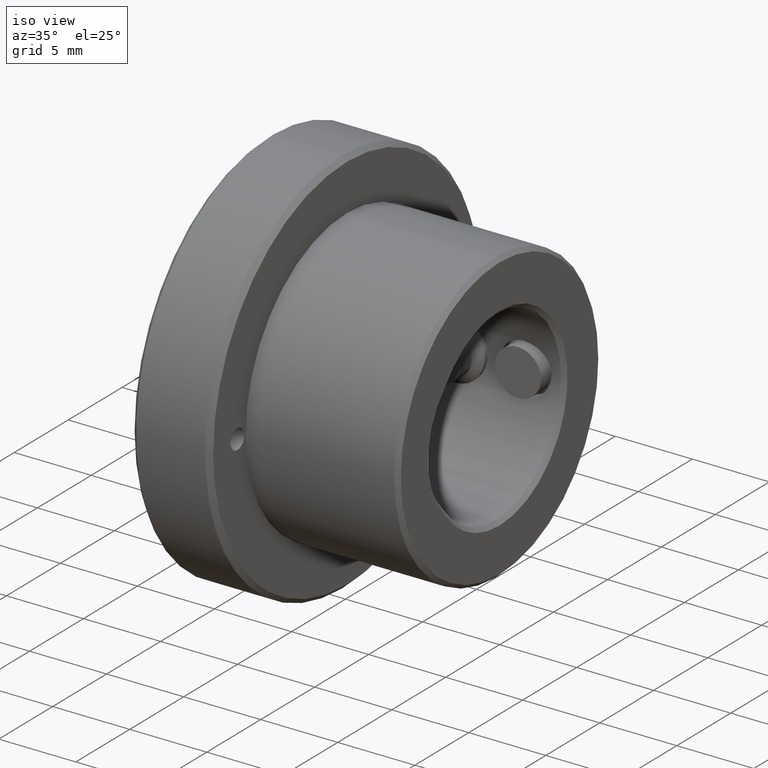
[diagram: clean part render]
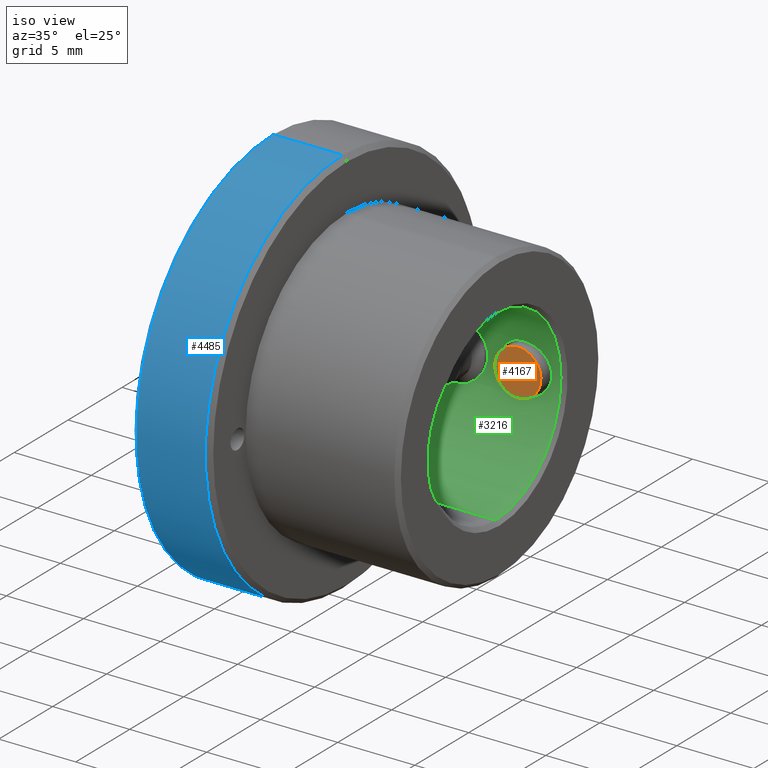
[diagram: same view with three faces highlighted in distinct colors, each labeled with its STEP entity id]
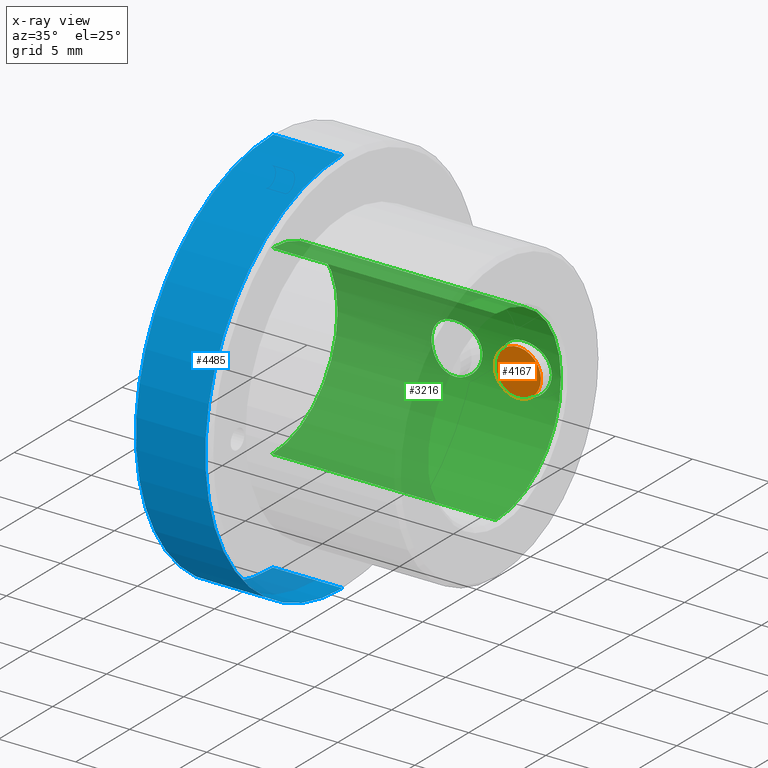
[diagram: x-ray of the same camera — body ghosted, the three highlighted faces saturated]
A machine part, iso view with three faces highlighted in distinct colors.
The next image is the same camera in x-ray (body ghosted, the three faces saturated) — at least one of them is partly hidden behind the body in this view.
Their STEP definitions:

[orange] entity #4167 — the highlighted planar face has unit normal (0, -1, -0).
#119 = DIRECTION ( 'NONE',  ( -0.07269587211734930554, 0.000000000000000000, -0.9973541548402442558 ) ) ;
#181 = ORIENTED_EDGE ( 'NONE', *, *, #3874, .T. ) ;
#583 = CARTESIAN_POINT ( 'NONE',  ( 12.39095619182397279, 5.267381158747628689, -1.496031232260366606 ) ) ;
#597 = CARTESIAN_POINT ( 'NONE',  ( 12.49999999999999645, 5.267381158747628689, -9.870023671163749522E-17 ) ) ;
#617 = CARTESIAN_POINT ( 'NONE',  ( 12.49999999999999645, 5.267381158747628689, -9.870023671163749522E-17 ) ) ;
#1184 = EDGE_CURVE ( 'NONE', #4309, #3618, #3786, .T. ) ;
#1241 = CARTESIAN_POINT ( 'NONE',  ( 12.49999999999999645, 5.267381158747628689, -9.870023671163749522E-17 ) ) ;
#1283 = AXIS2_PLACEMENT_3D ( 'NONE', #617, #4974, #3727 ) ;
#1576 = DIRECTION ( 'NONE',  ( 5.083153145339566557E-16, -1.000000000000000000, -1.738507377522465342E-17 ) ) ;
#1590 = ORIENTED_EDGE ( 'NONE', *, *, #1184, .T. ) ;
#1613 = CARTESIAN_POINT ( 'NONE',  ( 12.60904380817602188, 5.267381158747628689, 1.496031232260366606 ) ) ;
#1752 = DIRECTION ( 'NONE',  ( 5.083153145339567543E-16, -1.000000000000000000, -1.738507377522467191E-17 ) ) ;
#2302 = FACE_OUTER_BOUND ( 'NONE', #2749, .T. ) ;
#2489 = AXIS2_PLACEMENT_3D ( 'NONE', #597, #1752, #119 ) ;
#2578 = CIRCLE ( 'NONE', #1283, 1.500000000000000666 ) ;
#2749 = EDGE_LOOP ( 'NONE', ( #181, #1590 ) ) ;
#3371 = AXIS2_PLACEMENT_3D ( 'NONE', #1241, #1576, #3862 ) ;
#3618 = VERTEX_POINT ( 'NONE', #1613 ) ;
#3727 = DIRECTION ( 'NONE',  ( -0.07269587211734930554, 0.000000000000000000, -0.9973541548402442558 ) ) ;
#3786 = CIRCLE ( 'NONE', #2489, 1.500000000000000666 ) ;
#3862 = DIRECTION ( 'NONE',  ( -0.07269587211734895860, -1.961334953872604770E-17, -0.9973541548402442558 ) ) ;
#3874 = EDGE_CURVE ( 'NONE', #3618, #4309, #2578, .T. ) ;
#3889 = PLANE ( 'NONE',  #3371 ) ;
#4167 = ADVANCED_FACE ( 'NONE', ( #2302 ), #3889, .T. ) ;
#4309 = VERTEX_POINT ( 'NONE', #583 ) ;
#4974 = DIRECTION ( 'NONE',  ( 5.083153145339567543E-16, -1.000000000000000000, -1.738507377522467191E-17 ) ) ;

[blue] entity #4485 — the highlighted cylindrical surface (partial cylindrical patch) has radius 12.7 mm, axis along (-1, -0, -0).
#211 = CIRCLE ( 'NONE', #457, 12.69999999999999929 ) ;
#444 = AXIS2_PLACEMENT_3D ( 'NONE', #2320, #2873, #4040 ) ;
#457 = AXIS2_PLACEMENT_3D ( 'NONE', #2596, #1926, #3476 ) ;
#483 = AXIS2_PLACEMENT_3D ( 'NONE', #2969, #1027, #718 ) ;
#718 = DIRECTION ( 'NONE',  ( 0.000000000000000000, 0.000000000000000000, 1.000000000000000000 ) ) ;
#888 = CARTESIAN_POINT ( 'NONE',  ( 4.800000000000002487, 0.000000000000000000, 12.69999999999999929 ) ) ;
#923 = ORIENTED_EDGE ( 'NONE', *, *, #3354, .T. ) ;
#1027 = DIRECTION ( 'NONE',  ( -1.000000000000000000, -0.000000000000000000, -0.000000000000000000 ) ) ;
#1106 = DIRECTION ( 'NONE',  ( -1.000000000000000000, -0.000000000000000000, -0.000000000000000000 ) ) ;
#1189 = DIRECTION ( 'NONE',  ( -1.000000000000000000, -0.000000000000000000, -0.000000000000000000 ) ) ;
#1450 = VECTOR ( 'NONE', #1189, 1000.000000000000000 ) ;
#1593 = CIRCLE ( 'NONE', #444, 12.69999999999999929 ) ;
#1677 = CARTESIAN_POINT ( 'NONE',  ( 0.2999999999999964362, 0.000000000000000000, 12.69999999999999929 ) ) ;
#1710 = VERTEX_POINT ( 'NONE', #1677 ) ;
#1912 = VECTOR ( 'NONE', #1106, 1000.000000000000000 ) ;
#1926 = DIRECTION ( 'NONE',  ( -1.000000000000000000, 0.000000000000000000, 0.000000000000000000 ) ) ;
#1960 = CARTESIAN_POINT ( 'NONE',  ( 0.2999999999999964362, 1.555301434917138433E-15, -12.69999999999999929 ) ) ;
#1963 = VERTEX_POINT ( 'NONE', #2331 ) ;
#2160 = EDGE_CURVE ( 'NONE', #2402, #1710, #3774, .T. ) ;
#2320 = CARTESIAN_POINT ( 'NONE',  ( 0.2999999999999964362, 0.000000000000000000, 0.000000000000000000 ) ) ;
#2331 = CARTESIAN_POINT ( 'NONE',  ( 4.800000000000002487, 1.555301434917138433E-15, -12.69999999999999929 ) ) ;
#2402 = VERTEX_POINT ( 'NONE', #888 ) ;
#2471 = ORIENTED_EDGE ( 'NONE', *, *, #2509, .T. ) ;
#2509 = EDGE_CURVE ( 'NONE', #1710, #3544, #1593, .T. ) ;
#2596 = CARTESIAN_POINT ( 'NONE',  ( 4.800000000000002487, 0.000000000000000000, 0.000000000000000000 ) ) ;
#2873 = DIRECTION ( 'NONE',  ( 1.000000000000000000, -0.000000000000000000, -0.000000000000000000 ) ) ;
#2969 = CARTESIAN_POINT ( 'NONE',  ( 15.00000000000000000, 0.000000000000000000, 0.000000000000000000 ) ) ;
#3023 = CYLINDRICAL_SURFACE ( 'NONE', #483, 12.69999999999999929 ) ;
#3180 = ORIENTED_EDGE ( 'NONE', *, *, #4841, .F. ) ;
#3354 = EDGE_CURVE ( 'NONE', #1963, #2402, #211, .T. ) ;
#3476 = DIRECTION ( 'NONE',  ( 0.000000000000000000, 0.000000000000000000, -1.000000000000000000 ) ) ;
#3544 = VERTEX_POINT ( 'NONE', #1960 ) ;
#3774 = LINE ( 'NONE', #4518, #1912 ) ;
#3951 = LINE ( 'NONE', #4655, #1450 ) ;
#4026 = EDGE_LOOP ( 'NONE', ( #3180, #923, #4176, #2471 ) ) ;
#4040 = DIRECTION ( 'NONE',  ( 0.000000000000000000, 0.000000000000000000, -1.000000000000000000 ) ) ;
#4176 = ORIENTED_EDGE ( 'NONE', *, *, #2160, .T. ) ;
#4485 = ADVANCED_FACE ( 'NONE', ( #4573 ), #3023, .T. ) ;
#4518 = CARTESIAN_POINT ( 'NONE',  ( 15.00000000000000000, 0.000000000000000000, 12.69999999999999929 ) ) ;
#4573 = FACE_OUTER_BOUND ( 'NONE', #4026, .T. ) ;
#4655 = CARTESIAN_POINT ( 'NONE',  ( 15.00000000000000000, 1.555301434917138433E-15, -12.69999999999999929 ) ) ;
#4841 = EDGE_CURVE ( 'NONE', #1963, #3544, #3951, .T. ) ;

[green] entity #3216 — the highlighted cylindrical surface (partial cylindrical patch) has radius 6.05 mm, axis along (-1, -0, -0).
#21 = CARTESIAN_POINT ( 'NONE',  ( 8.000000000000000000, 5.820652884342100819, 1.649999999999992584 ) ) ;
#45 = CARTESIAN_POINT ( 'NONE',  ( 6.909863855020534018, 5.921387189460617151, -1.243254704019277179 ) ) ;
#66 = CARTESIAN_POINT ( 'NONE',  ( 8.108001473620124244, 5.820652884342101707, -1.649999999999993028 ) ) ;
#115 = CARTESIAN_POINT ( 'NONE',  ( 13.94113598176530999, 5.995874287341723452, 0.8317341448035647788 ) ) ;
#164 = CARTESIAN_POINT ( 'NONE',  ( 14.75000000000000000, 7.409113134841486521E-16, -6.049999999999999822 ) ) ;
#196 = B_SPLINE_CURVE_WITH_KNOTS ( 'NONE', 3,
 ( #3398, #4990, #1492, #1467, #1080, #2267, #2657, #716, #3608, #1592, #115, #4401, #937, #2078, #3907, #4293, #3493, #4795, #3254, #2825, #413, #4652, #2103, #1323, #5041, #1298, #2848, #3234 ),
 .UNSPECIFIED., .F., .F.,
 ( 4, 2, 2, 2, 2, 2, 2, 2, 2, 2, 2, 2, 2, 4 ),
 ( 0.000000000000000000, 0.0003239533771381983090, 0.0006479067542763966179, 0.0009718601314145948727, 0.001295813508552793236, 0.001943720262829189745, 0.002591627017105586472, 0.002915580394243784835, 0.003239533771381982764, 0.003887440525658379491, 0.004211393902796578721, 0.004535347279934778819, 0.004859300657072977182, 0.005183254034211177280 ),
 .UNSPECIFIED. ) ;
#222 = EDGE_LOOP ( 'NONE', ( #2545, #1523 ) ) ;
#271 = CARTESIAN_POINT ( 'NONE',  ( 12.07012878539819667, 5.835541179983138704, 1.596698283100225879 ) ) ;
#381 = CARTESIAN_POINT ( 'NONE',  ( 9.639178384873765992, 6.047023121153222824, -0.2174533895353867041 ) ) ;
#406 = CARTESIAN_POINT ( 'NONE',  ( 8.428818910613633975, 5.835471435782779714, 1.596951337616860922 ) ) ;
#413 = CARTESIAN_POINT ( 'NONE',  ( 13.50716811691524377, 5.906490585142162075, -1.311345055303445806 ) ) ;
#427 = CARTESIAN_POINT ( 'NONE',  ( 6.434896040027602737, 6.027267498296711601, 0.5334300614515882222 ) ) ;
#432 = EDGE_LOOP ( 'NONE', ( #4515, #2098, #2154, #2367 ) ) ;
#449 = CARTESIAN_POINT ( 'NONE',  ( 6.434740351836484962, 6.027304640978334405, -0.5332127588514852246 ) ) ;
#475 = CARTESIAN_POINT ( 'NONE',  ( 7.570128785398200222, 5.835541179983138704, 1.596698283100225657 ) ) ;
#536 = VECTOR ( 'NONE', #5036, 1000.000000000000000 ) ;
#625 = CARTESIAN_POINT ( 'NONE',  ( 11.40986385502053224, 5.921387189460618039, -1.243254704019276957 ) ) ;
#652 = CARTESIAN_POINT ( 'NONE',  ( 10.90329140060959467, 6.035649314777584706, -0.4296898438400200138 ) ) ;
#678 = CARTESIAN_POINT ( 'NONE',  ( 8.217223572501771045, 5.823746843758519809, 1.639192835625423061 ) ) ;
#705 = CARTESIAN_POINT ( 'NONE',  ( 11.67134456165053891, 5.878679629362986603, -1.430874558913089123 ) ) ;
#711 = CARTESIAN_POINT ( 'NONE',  ( 15.00000000000000000, 7.409113134841486521E-16, -6.049999999999999822 ) ) ;
#716 = CARTESIAN_POINT ( 'NONE',  ( 13.50698412154059369, 5.906454435006299519, 1.311515988438456626 ) ) ;
#732 = CARTESIAN_POINT ( 'NONE',  ( 12.28257336775668129, 5.823746727197572248, 1.639195024391473465 ) ) ;
#744 = DIRECTION ( 'NONE',  ( -1.000000000000000000, -0.000000000000000000, -0.000000000000000000 ) ) ;
#760 = CARTESIAN_POINT ( 'NONE',  ( 9.596781110140884863, 6.035668377572366516, -0.4295134926344363335 ) ) ;
#786 = CARTESIAN_POINT ( 'NONE',  ( 6.350021537615861078, 6.049994126104873970, -0.1091092075147136187 ) ) ;
#792 = LINE ( 'NONE', #711, #536 ) ;
#815 = CARTESIAN_POINT ( 'NONE',  ( 7.464884637372581899, 5.844364417352345242, 1.564523180999336960 ) ) ;
#833 = EDGE_LOOP ( 'NONE', ( #1268, #1889 ) ) ;
#836 = CARTESIAN_POINT ( 'NONE',  ( 8.733454485855785876, 5.865843182979457282, 1.481965860581485606 ) ) ;
#861 = CARTESIAN_POINT ( 'NONE',  ( 9.318374598874992643, 5.966244817127337008, 1.015011607054941756 ) ) ;
#869 = VERTEX_POINT ( 'NONE', #3361 ) ;
#937 = CARTESIAN_POINT ( 'NONE',  ( 14.14990892080386153, 6.049975160221265469, 0.2171116380738270790 ) ) ;
#956 = VERTEX_POINT ( 'NONE', #2954 ) ;
#1019 = FACE_BOUND ( 'NONE', #833, .T. ) ;
#1069 = CARTESIAN_POINT ( 'NONE',  ( 11.01837379335457179, 6.006128510547249277, -0.7342597606790576270 ) ) ;
#1080 = CARTESIAN_POINT ( 'NONE',  ( 13.03389647622116954, 5.844245563954850731, 1.564970558007278356 ) ) ;
#1098 = CYLINDRICAL_SURFACE ( 'NONE', #3509, 6.049999999999999822 ) ;
#1107 = LINE ( 'NONE', #4266, #3430 ) ;
#1124 = CARTESIAN_POINT ( 'NONE',  ( 12.49999999999999822, 5.820652884342100819, -1.649999999999992584 ) ) ;
#1150 = CARTESIAN_POINT ( 'NONE',  ( 8.732202642485704658, 5.865691249060273726, -1.482561562781913533 ) ) ;
#1177 = CARTESIAN_POINT ( 'NONE',  ( 7.784056454903546474, 5.820652884342099931, -1.649999999999992362 ) ) ;
#1193 = VERTEX_POINT ( 'NONE', #4874 ) ;
#1204 = CARTESIAN_POINT ( 'NONE',  ( 6.681554222995073289, 5.966263612773838432, 1.014889503281987571 ) ) ;
#1248 = CARTESIAN_POINT ( 'NONE',  ( 6.360968044777620456, 6.046983549659113777, -0.2183711588704845830 ) ) ;
#1268 = ORIENTED_EDGE ( 'NONE', *, *, #2359, .T. ) ;
#1270 = EDGE_CURVE ( 'NONE', #4151, #956, #4581, .T. ) ;
#1298 = CARTESIAN_POINT ( 'NONE',  ( 12.71754542227796136, 5.823748415557236768, -1.639189706305362648 ) ) ;
#1323 = CARTESIAN_POINT ( 'NONE',  ( 13.03317988904885816, 5.844184623514676602, -1.565192864478766488 ) ) ;
#1384 = EDGE_CURVE ( 'NONE', #2892, #1698, #2445, .T. ) ;
#1430 = EDGE_CURVE ( 'NONE', #1698, #2892, #2258, .T. ) ;
#1467 = CARTESIAN_POINT ( 'NONE',  ( 12.92881891061363397, 5.835471435782780603, 1.596951337616860922 ) ) ;
#1492 = CARTESIAN_POINT ( 'NONE',  ( 12.71722357250177282, 5.823746843758520697, 1.639192835625423283 ) ) ;
#1507 = CARTESIAN_POINT ( 'NONE',  ( 12.49999999999999822, 5.820652884342100819, 1.649999999999992584 ) ) ;
#1513 = CIRCLE ( 'NONE', #2809, 6.049999999999999822 ) ;
#1523 = ORIENTED_EDGE ( 'NONE', *, *, #1430, .T. ) ;
#1529 = DIRECTION ( 'NONE',  ( 0.000000000000000000, 0.000000000000000000, -1.000000000000000000 ) ) ;
#1538 = FACE_BOUND ( 'NONE', #222, .T. ) ;
#1561 = CARTESIAN_POINT ( 'NONE',  ( 8.000000000000000000, 5.820652884342100819, -1.649999999999992584 ) ) ;
#1584 = CARTESIAN_POINT ( 'NONE',  ( 9.091284006682245789, 5.921603853009377083, 1.242201373817180210 ) ) ;
#1592 = CARTESIAN_POINT ( 'NONE',  ( 13.81837459887499620, 5.966244817127337896, 1.015011607054941978 ) ) ;
#1609 = CARTESIAN_POINT ( 'NONE',  ( 7.890447948862960637, 5.820652884342102595, 1.649999999999992806 ) ) ;
#1631 = CARTESIAN_POINT ( 'NONE',  ( 8.000000000000000000, 5.820652884342100819, -1.649999999999992584 ) ) ;
#1656 = CARTESIAN_POINT ( 'NONE',  ( 9.565428852286959938, 6.027349805914687053, -0.5326459923273910713 ) ) ;
#1698 = VERTEX_POINT ( 'NONE', #3700 ) ;
#1804 = CARTESIAN_POINT ( 'NONE',  ( 11.49257571605417638, 5.906530964708893272, -1.311170527035711908 ) ) ;
#1830 = CARTESIAN_POINT ( 'NONE',  ( 10.93489604002760451, 6.027267498296711601, 0.5334300614515883332 ) ) ;
#1881 = CARTESIAN_POINT ( 'NONE',  ( 11.48409209935594610, 5.906781788148093959, 1.317661226637211636 ) ) ;
#1889 = ORIENTED_EDGE ( 'NONE', *, *, #1270, .T. ) ;
#1906 = CARTESIAN_POINT ( 'NONE',  ( 11.18155422299506796, 5.966263612773837544, 1.014889503281986904 ) ) ;
#1933 = CARTESIAN_POINT ( 'NONE',  ( 8.533179889048861710, 5.844184623514677490, -1.565192864478766932 ) ) ;
#1957 = CARTESIAN_POINT ( 'NONE',  ( 7.566019144702107013, 5.833463128635248296, -1.606387650986832671 ) ) ;
#1980 = CARTESIAN_POINT ( 'NONE',  ( 9.649908920803863310, 6.049975160221266357, 0.2171116380738271068 ) ) ;
#1997 = EDGE_CURVE ( 'NONE', #869, #2318, #1513, .T. ) ;
#2002 = CARTESIAN_POINT ( 'NONE',  ( 6.403291400609598227, 6.035649314777582930, -0.4296898438400201248 ) ) ;
#2078 = CARTESIAN_POINT ( 'NONE',  ( 14.15004532112130420, 6.050012360304802606, -0.1075158864051247443 ) ) ;
#2098 = ORIENTED_EDGE ( 'NONE', *, *, #4744, .T. ) ;
#2103 = CARTESIAN_POINT ( 'NONE',  ( 13.23220264248570111, 5.865691249060271950, -1.482561562781913311 ) ) ;
#2154 = ORIENTED_EDGE ( 'NONE', *, *, #2858, .T. ) ;
#2179 = CARTESIAN_POINT ( 'NONE',  ( 11.05882012251884561, 5.995882904232449739, 0.8318008804212525531 ) ) ;
#2228 = CARTESIAN_POINT ( 'NONE',  ( 10.86061089756231368, 6.047080519543242438, 0.2158910984902901453 ) ) ;
#2256 = CARTESIAN_POINT ( 'NONE',  ( 11.18846256502483882, 5.966302519368756663, -1.006899070453918688 ) ) ;
#2258 = B_SPLINE_CURVE_WITH_KNOTS ( 'NONE', 3,
 ( #1631, #1177, #1957, #2310, #3183, #3872, #45, #5059, #3115, #2411, #2730, #449, #2002, #1248, #786, #3966, #4284, #2801, #427, #2337, #1204, #4312, #3898, #815, #475, #3530, #1609, #21 ),
 .UNSPECIFIED., .F., .F.,
 ( 4, 2, 2, 2, 2, 2, 2, 2, 2, 2, 2, 2, 2, 4 ),
 ( 0.005183254034211177280, 0.005830982610130875689, 0.006154846898090725327, 0.006478711186050574097, 0.006802575474010423735, 0.007126439761970272506, 0.007450304049930122144, 0.007774168337889970914, 0.008098032625849819685, 0.008421896913809668456, 0.009069625489729365997, 0.009717354065649063538, 0.01004121835360891057, 0.01036508264156875761 ),
 .UNSPECIFIED. ) ;
#2267 = CARTESIAN_POINT ( 'NONE',  ( 13.23345448585578232, 5.865843182979456394, 1.481965860581485162 ) ) ;
#2310 = CARTESIAN_POINT ( 'NONE',  ( 7.267867043559038009, 5.865684686249547752, -1.482586085559628231 ) ) ;
#2318 = VERTEX_POINT ( 'NONE', #2966 ) ;
#2337 = CARTESIAN_POINT ( 'NONE',  ( 6.558820122518847384, 5.995882904232452404, 0.8318008804212526641 ) ) ;
#2347 = CARTESIAN_POINT ( 'NONE',  ( 14.75000000000000000, 0.000000000000000000, 0.000000000000000000 ) ) ;
#2354 = CARTESIAN_POINT ( 'NONE',  ( 0.2500000000000036637, 0.000000000000000000, 0.000000000000000000 ) ) ;
#2359 = EDGE_CURVE ( 'NONE', #956, #4151, #196, .T. ) ;
#2361 = CARTESIAN_POINT ( 'NONE',  ( 9.318953645693060395, 5.966341157360104397, -1.014617364795000309 ) ) ;
#2367 = ORIENTED_EDGE ( 'NONE', *, *, #1997, .T. ) ;
#2386 = CARTESIAN_POINT ( 'NONE',  ( 9.440542365182119866, 5.995721397049218915, -0.8333394704291797739 ) ) ;
#2411 = CARTESIAN_POINT ( 'NONE',  ( 6.569275362430828658, 5.993630644094795734, -0.8288565574782845724 ) ) ;
#2445 = B_SPLINE_CURVE_WITH_KNOTS ( 'NONE', 3,
 ( #4559, #4174, #678, #406, #4670, #836, #4355, #3919, #1584, #861, #3207, #4255, #1980, #4332, #381, #760, #1656, #2386, #2361, #4694, #3939, #2755, #1150, #1933, #3554, #2780, #66, #1561 ),
 .UNSPECIFIED., .F., .F.,
 ( 4, 2, 2, 2, 2, 2, 2, 2, 2, 2, 2, 2, 2, 4 ),
 ( 0.000000000000000000, 0.0003239533771381977127, 0.0006479067542763954253, 0.0009718601314145931380, 0.001295813508552790851, 0.001943720262829189962, 0.002591627017105589074, 0.002915580394243788304, 0.003239533771381987969, 0.003887440525658386863, 0.004211393902796584793, 0.004535347279934782289, 0.004859300657072979784, 0.005183254034211177280 ),
 .UNSPECIFIED. ) ;
#2496 = CARTESIAN_POINT ( 'NONE',  ( 8.000000000000000000, 5.820652884342100819, 1.649999999999992584 ) ) ;
#2545 = ORIENTED_EDGE ( 'NONE', *, *, #1384, .T. ) ;
#2573 = CARTESIAN_POINT ( 'NONE',  ( 15.00000000000000000, 0.000000000000000000, 0.000000000000000000 ) ) ;
#2657 = CARTESIAN_POINT ( 'NONE',  ( 13.32801868572408210, 5.878588428838928515, 1.431249896089546114 ) ) ;
#2730 = CARTESIAN_POINT ( 'NONE',  ( 6.518373793354574453, 6.006128510547250166, -0.7342597606790575160 ) ) ;
#2755 = CARTESIAN_POINT ( 'NONE',  ( 8.828847929001808481, 5.878710088620886509, -1.430742667424442116 ) ) ;
#2780 = CARTESIAN_POINT ( 'NONE',  ( 8.217545422277964917, 5.823748415557239433, -1.639189706305363536 ) ) ;
#2801 = CARTESIAN_POINT ( 'NONE',  ( 6.402839146083412203, 6.035769128614138168, 0.4281154077059343699 ) ) ;
#2809 = AXIS2_PLACEMENT_3D ( 'NONE', #2354, #3455, #1529 ) ;
#2825 = CARTESIAN_POINT ( 'NONE',  ( 13.58993114654087186, 5.921346715556370377, -1.243461649954653803 ) ) ;
#2848 = CARTESIAN_POINT ( 'NONE',  ( 12.60800147362012247, 5.820652884342099931, -1.649999999999992362 ) ) ;
#2858 = EDGE_CURVE ( 'NONE', #1193, #869, #1107, .T. ) ;
#2892 = VERTEX_POINT ( 'NONE', #2496 ) ;
#2954 = CARTESIAN_POINT ( 'NONE',  ( 12.49999999999999822, 5.820652884342100819, 1.649999999999992584 ) ) ;
#2966 = CARTESIAN_POINT ( 'NONE',  ( 0.2500000000000036637, 7.409113134841486521E-16, -6.049999999999999822 ) ) ;
#3015 = FACE_OUTER_BOUND ( 'NONE', #432, .T. ) ;
#3091 = CARTESIAN_POINT ( 'NONE',  ( 12.06601914470210168, 5.833463128635245631, -1.606387650986832227 ) ) ;
#3115 = CARTESIAN_POINT ( 'NONE',  ( 6.688462565024839712, 5.966302519368756663, -1.006899070453918688 ) ) ;
#3124 = DIRECTION ( 'NONE',  ( 0.000000000000000000, 0.000000000000000000, -1.000000000000000000 ) ) ;
#3183 = CARTESIAN_POINT ( 'NONE',  ( 7.171344561650538019, 5.878679629362985715, -1.430874558913088901 ) ) ;
#3207 = CARTESIAN_POINT ( 'NONE',  ( 9.441135981765313545, 5.995874287341723452, 0.8317341448035647788 ) ) ;
#3216 = ADVANCED_FACE ( 'NONE', ( #3015, #1538, #1019 ), #1098, .F. ) ;
#3224 = VERTEX_POINT ( 'NONE', #164 ) ;
#3234 = CARTESIAN_POINT ( 'NONE',  ( 12.49999999999999822, 5.820652884342100819, -1.649999999999992584 ) ) ;
#3254 = CARTESIAN_POINT ( 'NONE',  ( 13.81895364569306395, 5.966341157360105285, -1.014617364794999865 ) ) ;
#3361 = CARTESIAN_POINT ( 'NONE',  ( 0.2500000000000036637, 0.000000000000000000, 6.049999999999999822 ) ) ;
#3389 = DIRECTION ( 'NONE',  ( 0.000000000000000000, 0.000000000000000000, 1.000000000000000000 ) ) ;
#3398 = CARTESIAN_POINT ( 'NONE',  ( 12.49999999999999822, 5.820652884342100819, 1.649999999999992584 ) ) ;
#3399 = CIRCLE ( 'NONE', #4039, 6.049999999999999822 ) ;
#3411 = CARTESIAN_POINT ( 'NONE',  ( 11.76786704355903623, 5.865684686249547752, -1.482586085559628009 ) ) ;
#3430 = VECTOR ( 'NONE', #744, 1000.000000000000000 ) ;
#3434 = CARTESIAN_POINT ( 'NONE',  ( 11.66685783109869767, 5.876658390580394631, 1.440381570006760148 ) ) ;
#3455 = DIRECTION ( 'NONE',  ( -1.000000000000000000, 0.000000000000000000, 0.000000000000000000 ) ) ;
#3459 = CARTESIAN_POINT ( 'NONE',  ( 10.85002153761585930, 6.049994126104873082, -0.1091092075147135770 ) ) ;
#3493 = CARTESIAN_POINT ( 'NONE',  ( 14.06542885228695994, 6.027349805914687053, -0.5326459923273911823 ) ) ;
#3509 = AXIS2_PLACEMENT_3D ( 'NONE', #2573, #4127, #3389 ) ;
#3530 = CARTESIAN_POINT ( 'NONE',  ( 7.782573367756678628, 5.823746727197573136, 1.639195024391473465 ) ) ;
#3554 = CARTESIAN_POINT ( 'NONE',  ( 8.430292572767440262, 5.835569491928800367, -1.596595504764039886 ) ) ;
#3579 = EDGE_CURVE ( 'NONE', #3224, #2318, #792, .T. ) ;
#3608 = CARTESIAN_POINT ( 'NONE',  ( 13.59128400668224579, 5.921603853009376195, 1.242201373817179988 ) ) ;
#3700 = CARTESIAN_POINT ( 'NONE',  ( 8.000000000000000000, 5.820652884342100819, -1.649999999999992584 ) ) ;
#3733 = CARTESIAN_POINT ( 'NONE',  ( 12.39044794886295975, 5.820652884342102595, 1.649999999999992806 ) ) ;
#3761 = CARTESIAN_POINT ( 'NONE',  ( 10.86096804477762667, 6.046983549659116441, -0.2183711588704846107 ) ) ;
#3817 = CARTESIAN_POINT ( 'NONE',  ( 10.93474035183648851, 6.027304640978333516, -0.5332127588514853356 ) ) ;
#3872 = CARTESIAN_POINT ( 'NONE',  ( 6.992575716054175494, 5.906530964708890608, -1.311170527035711464 ) ) ;
#3898 = CARTESIAN_POINT ( 'NONE',  ( 7.166857831098698561, 5.876658390580393743, 1.440381570006760814 ) ) ;
#3907 = CARTESIAN_POINT ( 'NONE',  ( 14.13917838487376599, 6.047023121153222824, -0.2174533895353865931 ) ) ;
#3913 = CARTESIAN_POINT ( 'NONE',  ( 12.49999999999999822, 5.820652884342100819, -1.649999999999992584 ) ) ;
#3919 = CARTESIAN_POINT ( 'NONE',  ( 9.006984121540588362, 5.906454435006298631, 1.311515988438456182 ) ) ;
#3939 = CARTESIAN_POINT ( 'NONE',  ( 9.007168116915245548, 5.906490585142162075, -1.311345055303446028 ) ) ;
#3966 = CARTESIAN_POINT ( 'NONE',  ( 6.349978526868706119, 6.050005856308430907, 0.1084568287460480618 ) ) ;
#4039 = AXIS2_PLACEMENT_3D ( 'NONE', #2347, #4680, #3124 ) ;
#4127 = DIRECTION ( 'NONE',  ( -1.000000000000000000, -0.000000000000000000, -0.000000000000000000 ) ) ;
#4149 = CARTESIAN_POINT ( 'NONE',  ( 12.28405645490354026, 5.820652884342099043, -1.649999999999992362 ) ) ;
#4151 = VERTEX_POINT ( 'NONE', #3913 ) ;
#4174 = CARTESIAN_POINT ( 'NONE',  ( 8.109582186914849444, 5.820652884342101707, 1.649999999999992140 ) ) ;
#4230 = CARTESIAN_POINT ( 'NONE',  ( 10.84997852686870523, 6.050005856308431795, 0.1084568287460481728 ) ) ;
#4255 = CARTESIAN_POINT ( 'NONE',  ( 9.606066538651996112, 6.037639048356945537, 0.4349768717911056681 ) ) ;
#4266 = CARTESIAN_POINT ( 'NONE',  ( 15.00000000000000000, 0.000000000000000000, 6.049999999999999822 ) ) ;
#4284 = CARTESIAN_POINT ( 'NONE',  ( 6.360610897562315458, 6.047080519543241550, 0.2158910984902904506 ) ) ;
#4293 = CARTESIAN_POINT ( 'NONE',  ( 14.09678111014088309, 6.035668377572367405, -0.4295134926344363890 ) ) ;
#4312 = CARTESIAN_POINT ( 'NONE',  ( 6.984092099355950545, 5.906781788148094847, 1.317661226637212968 ) ) ;
#4332 = CARTESIAN_POINT ( 'NONE',  ( 9.650045321121313080, 6.050012360304803494, -0.1075158864051245916 ) ) ;
#4355 = CARTESIAN_POINT ( 'NONE',  ( 8.828018685724080328, 5.878588428838927626, 1.431249896089546114 ) ) ;
#4401 = CARTESIAN_POINT ( 'NONE',  ( 14.10606653865199611, 6.037639048356946425, 0.4349768717911055571 ) ) ;
#4515 = ORIENTED_EDGE ( 'NONE', *, *, #3579, .F. ) ;
#4559 = CARTESIAN_POINT ( 'NONE',  ( 8.000000000000000000, 5.820652884342100819, 1.649999999999992584 ) ) ;
#4581 = B_SPLINE_CURVE_WITH_KNOTS ( 'NONE', 3,
 ( #1124, #4149, #3091, #3411, #705, #1804, #625, #4643, #2256, #4981, #1069, #3817, #652, #3761, #3459, #4230, #2228, #4589, #1830, #2179, #1906, #1881, #3434, #5007, #271, #732, #3733, #1507 ),
 .UNSPECIFIED., .F., .F.,
 ( 4, 2, 2, 2, 2, 2, 2, 2, 2, 2, 2, 2, 2, 4 ),
 ( 0.005183254034211177280, 0.005830982610130873954, 0.006154846898090722725, 0.006478711186050570628, 0.006802575474010419398, 0.007126439761970268169, 0.007450304049930116940, 0.007774168337889965710, 0.008098032625849814481, 0.008421896913809663252, 0.009069625489729362527, 0.009717354065649060069, 0.01004121835360890884, 0.01036508264156875761 ),
 .UNSPECIFIED. ) ;
#4589 = CARTESIAN_POINT ( 'NONE',  ( 10.90283914608341398, 6.035769128614139056, 0.4281154077059340923 ) ) ;
#4643 = CARTESIAN_POINT ( 'NONE',  ( 11.25762451609919879, 5.951296184522780308, -1.091138043814346537 ) ) ;
#4652 = CARTESIAN_POINT ( 'NONE',  ( 13.32884792900180493, 5.878710088620885621, -1.430742667424441450 ) ) ;
#4670 = CARTESIAN_POINT ( 'NONE',  ( 8.533896476221171312, 5.844245563954850731, 1.564970558007278134 ) ) ;
#4680 = DIRECTION ( 'NONE',  ( 1.000000000000000000, -0.000000000000000000, -0.000000000000000000 ) ) ;
#4694 = CARTESIAN_POINT ( 'NONE',  ( 9.089931146540877194, 5.921346715556372153, -1.243461649954654025 ) ) ;
#4744 = EDGE_CURVE ( 'NONE', #3224, #1193, #3399, .T. ) ;
#4795 = CARTESIAN_POINT ( 'NONE',  ( 13.94054236518212520, 5.995721397049221579, -0.8333394704291805510 ) ) ;
#4874 = CARTESIAN_POINT ( 'NONE',  ( 14.75000000000000000, 0.000000000000000000, 6.049999999999999822 ) ) ;
#4981 = CARTESIAN_POINT ( 'NONE',  ( 11.06927536243082422, 5.993630644094794846, -0.8288565574782843504 ) ) ;
#4990 = CARTESIAN_POINT ( 'NONE',  ( 12.60958218691485122, 5.820652884342104372, 1.649999999999992806 ) ) ;
#5007 = CARTESIAN_POINT ( 'NONE',  ( 11.96488463737258101, 5.844364417352347019, 1.564523180999336072 ) ) ;
#5036 = DIRECTION ( 'NONE',  ( -1.000000000000000000, -0.000000000000000000, -0.000000000000000000 ) ) ;
#5041 = CARTESIAN_POINT ( 'NONE',  ( 12.93029257276744026, 5.835569491928800367, -1.596595504764040330 ) ) ;
#5059 = CARTESIAN_POINT ( 'NONE',  ( 6.757624516099196121, 5.951296184522779420, -1.091138043814346315 ) ) ;